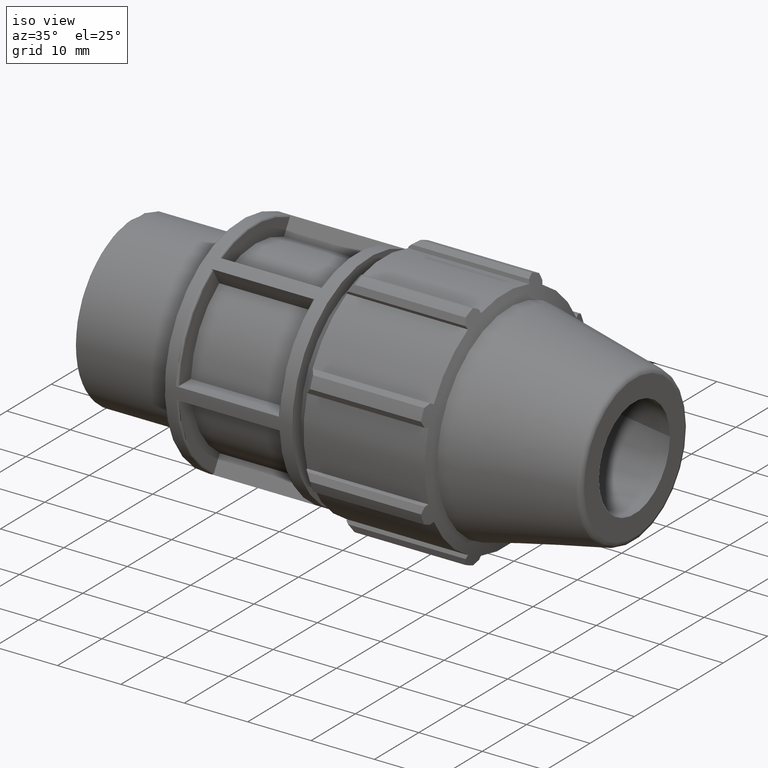
[diagram: clean part render]
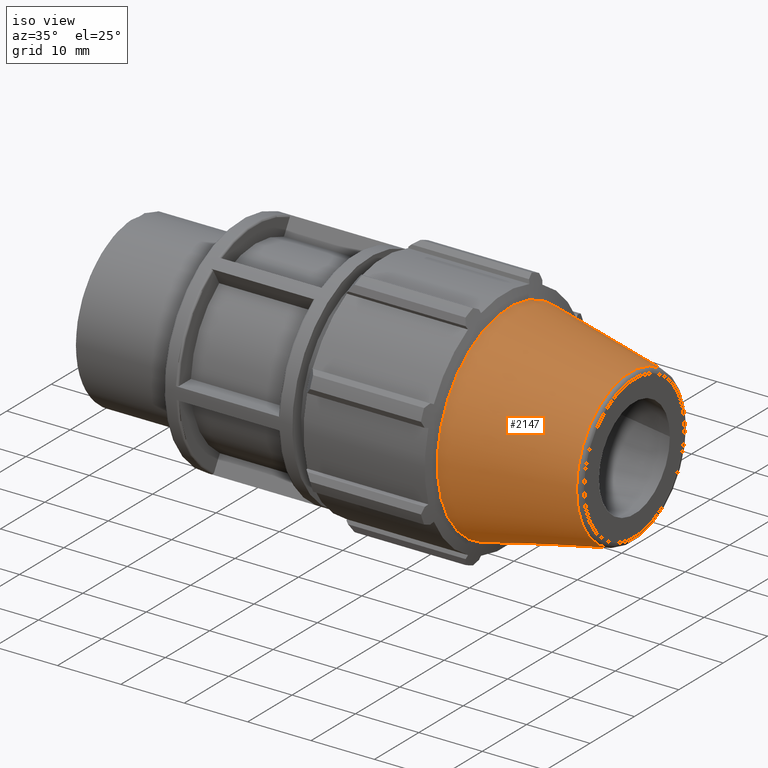
[diagram: same view with one face highlighted and labeled with its STEP entity id]
A machine part, iso view. The second image highlights one B-rep face of the part: STEP entity #2147.
In plain terms, the highlighted conical surface has half-angle 12 deg.
Its self-contained STEP definition (entity closure, byte-faithful):
#56=CONICAL_SURFACE('',#2357,14.0989960464915,12.);
#479=FACE_BOUND('',#714,.T.);
#577=FACE_OUTER_BOUND('',#713,.T.);
#713=EDGE_LOOP('',(#1830));
#714=EDGE_LOOP('',(#1831));
#832=CIRCLE('',#2338,16.1979920929829);
#833=CIRCLE('',#2355,12.134690854031);
#1034=VERTEX_POINT('',#3771);
#1035=VERTEX_POINT('',#3810);
#1305=EDGE_CURVE('',#1034,#1034,#832,.T.);
#1327=EDGE_CURVE('',#1035,#1035,#833,.T.);
#1830=ORIENTED_EDGE('',*,*,#1305,.T.);
#1831=ORIENTED_EDGE('',*,*,#1327,.F.);
#2147=ADVANCED_FACE('',(#577,#479),#56,.T.);
#2338=AXIS2_PLACEMENT_3D('',#3772,#2836,#2837);
#2355=AXIS2_PLACEMENT_3D('',#3811,#2891,#2892);
#2357=AXIS2_PLACEMENT_3D('',#3814,#2895,#2896);
#2836=DIRECTION('center_axis',(1.,0.,0.));
#2837=DIRECTION('ref_axis',(0.,0.,-1.));
#2891=DIRECTION('center_axis',(1.,0.,0.));
#2892=DIRECTION('ref_axis',(0.,-1.,3.06161699786838E-17));
#2895=DIRECTION('center_axis',(-1.,0.,0.));
#2896=DIRECTION('ref_axis',(0.,1.,0.));
#3771=CARTESIAN_POINT('',(59.25,16.1979920929829,0.));
#3772=CARTESIAN_POINT('Origin',(59.25,0.,0.));
#3810=CARTESIAN_POINT('',(78.3663293526542,12.134690854031,-7.43035515651589E-16));
#3811=CARTESIAN_POINT('Origin',(78.3663293526542,0.,-1.85758878912897E-15));
#3814=CARTESIAN_POINT('Origin',(69.125,0.,0.));